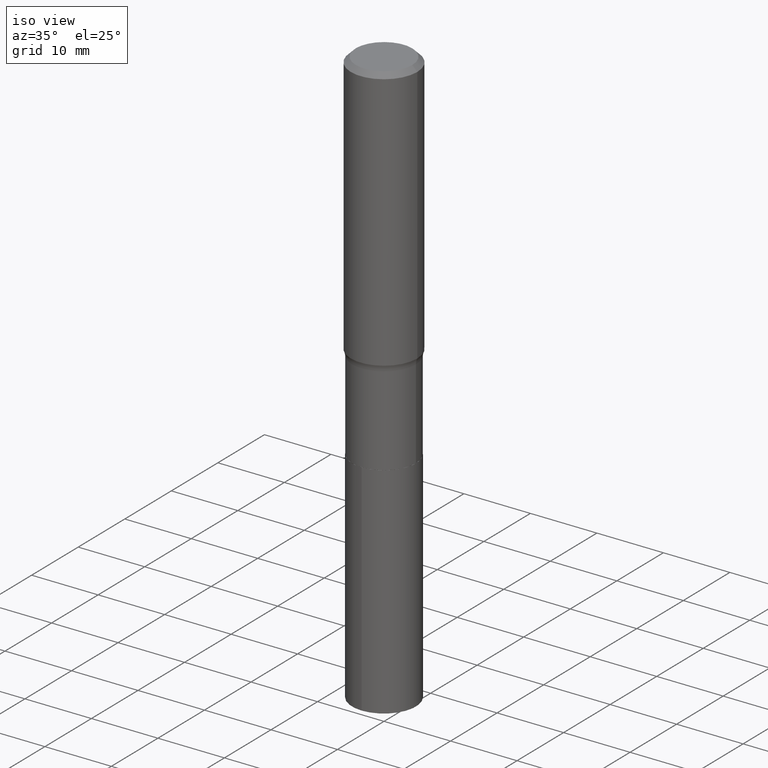
[diagram: clean part render]
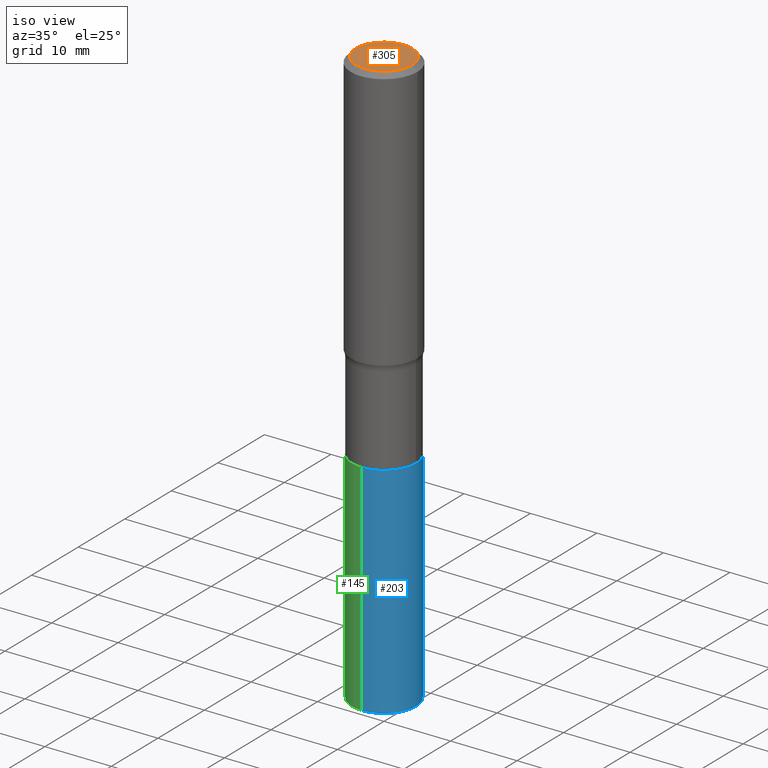
[diagram: same view with three faces highlighted in distinct colors, each labeled with its STEP entity id]
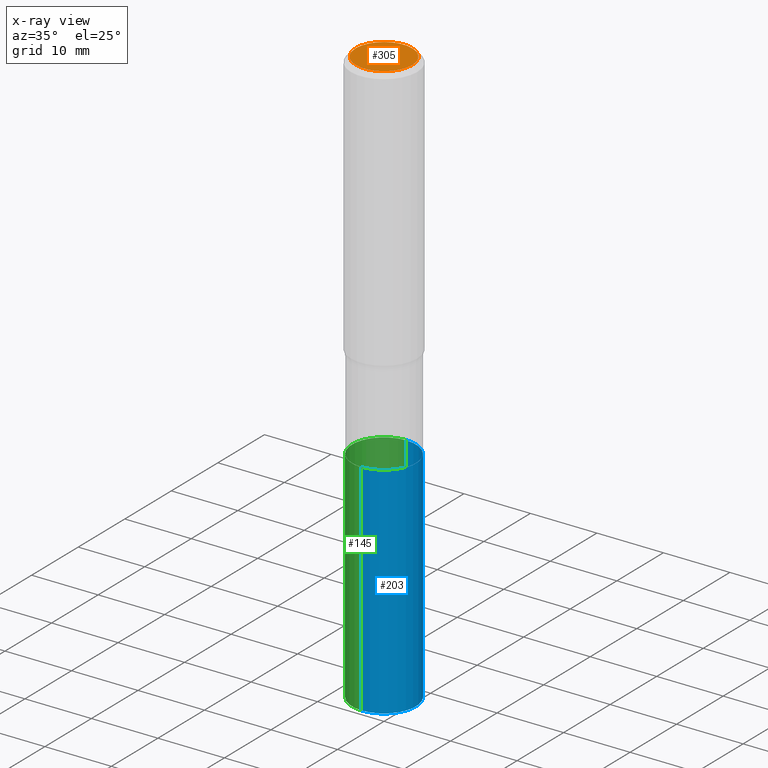
[diagram: x-ray of the same camera — body ghosted, the three highlighted faces saturated]
A machine part, iso view with three faces highlighted in distinct colors.
The next image is the same camera in x-ray (body ghosted, the three faces saturated) — at least one of them is partly hidden behind the body in this view.
Their STEP definitions:

[orange] entity #305 — the highlighted planar face has unit normal (0, -0, -1).
#49 = AXIS2_PLACEMENT_3D ( 'NONE', #140, #64, #479 ) ;
#59 = EDGE_LOOP ( 'NONE', ( #326, #61 ) ) ;
#61 = ORIENTED_EDGE ( 'NONE', *, *, #177, .T. ) ;
#64 = DIRECTION ( 'NONE',  ( -2.445468806185136597E-29, 3.491481338843145583E-15, 1.000000000000000000 ) ) ;
#75 = CARTESIAN_POINT ( 'NONE',  ( -5.008488096090108951E-47, 7.150793614331948590E-33, 2.048068690724054183E-18 ) ) ;
#118 = FACE_OUTER_BOUND ( 'NONE', #59, .T. ) ;
#133 = AXIS2_PLACEMENT_3D ( 'NONE', #75, #454, #381 ) ;
#138 = CIRCLE ( 'NONE', #49, 0.1673224999999999851 ) ;
#140 = CARTESIAN_POINT ( 'NONE',  ( -1.001697619218021790E-46, 1.430158722866389718E-32, 4.096137381448108366E-18 ) ) ;
#141 = CARTESIAN_POINT ( 'NONE',  ( -0.1673224999999999851, 1.219954130253505460E-15, 4.096137381439757534E-18 ) ) ;
#177 = EDGE_CURVE ( 'NONE', #317, #259, #138, .T. ) ;
#193 = DIRECTION ( 'NONE',  ( -2.445468806185136597E-29, 3.491481338843145583E-15, 1.000000000000000000 ) ) ;
#195 = CARTESIAN_POINT ( 'NONE',  ( -1.001697619218021790E-46, 1.430158722866389718E-32, 4.096137381448108366E-18 ) ) ;
#205 = CIRCLE ( 'NONE', #318, 0.1673224999999999851 ) ;
#234 = CARTESIAN_POINT ( 'NONE',  ( 0.1673224999999999851, -1.300749711163072594E-15, 4.096137381456741925E-18 ) ) ;
#259 = VERTEX_POINT ( 'NONE', #141 ) ;
#305 = ADVANCED_FACE ( 'NONE', ( #118 ), #416, .F. ) ;
#317 = VERTEX_POINT ( 'NONE', #234 ) ;
#318 = AXIS2_PLACEMENT_3D ( 'NONE', #195, #193, #341 ) ;
#326 = ORIENTED_EDGE ( 'NONE', *, *, #362, .T. ) ;
#341 = DIRECTION ( 'NONE',  ( 1.000000000000000000, -6.982962677686267499E-15, 4.876294436782262290E-29 ) ) ;
#362 = EDGE_CURVE ( 'NONE', #259, #317, #205, .T. ) ;
#381 = DIRECTION ( 'NONE',  ( -1.000000000000000000, 6.982962677686265922E-15, -4.876176775795935793E-29 ) ) ;
#416 = PLANE ( 'NONE',  #133 ) ;
#454 = DIRECTION ( 'NONE',  ( 2.438088387897960049E-29, -3.491481338843145188E-15, -1.000000000000000000 ) ) ;
#479 = DIRECTION ( 'NONE',  ( 1.000000000000000000, -6.982962677686267499E-15, 4.876294436782262290E-29 ) ) ;

[blue] entity #203 — the highlighted cylindrical surface (partial cylindrical patch) has radius 4.8006 mm, axis along (-0, 0, 1).
#9 = CARTESIAN_POINT ( 'NONE',  ( -1.319779946082652162E-15, -0.1890000000000073843, -2.125899999999999235 ) ) ;
#14 = CARTESIAN_POINT ( 'NONE',  ( -1.319779946082652162E-15, -0.1890000000000073843, -2.125899999999999235 ) ) ;
#22 = LINE ( 'NONE', #223, #58 ) ;
#24 = AXIS2_PLACEMENT_3D ( 'NONE', #25, #370, #334 ) ;
#25 = CARTESIAN_POINT ( 'NONE',  ( 5.198822135068982087E-29, -7.422540178246643119E-15, -2.125899999999999679 ) ) ;
#58 = VECTOR ( 'NONE', #67, 39.37007874015748143 ) ;
#67 = DIRECTION ( 'NONE',  ( -2.445359563184350382E-29, 3.491637781037997457E-15, 1.000000000000000000 ) ) ;
#69 = VECTOR ( 'NONE', #89, 39.37007874015748143 ) ;
#83 = ORIENTED_EDGE ( 'NONE', *, *, #105, .F. ) ;
#89 = DIRECTION ( 'NONE',  ( -2.445359563184350382E-29, 3.491637781037997457E-15, 1.000000000000000000 ) ) ;
#105 = EDGE_CURVE ( 'NONE', #222, #123, #470, .T. ) ;
#121 = CARTESIAN_POINT ( 'NONE',  ( 8.381797617458719247E-29, -1.196739223916697963E-14, -3.427539043317155976 ) ) ;
#123 = VERTEX_POINT ( 'NONE', #14 ) ;
#124 = DIRECTION ( 'NONE',  ( -2.445359563184350382E-29, 3.491637781037997062E-15, 1.000000000000000000 ) ) ;
#203 = ADVANCED_FACE ( 'NONE', ( #226 ), #445, .T. ) ;
#209 = ORIENTED_EDGE ( 'NONE', *, *, #238, .T. ) ;
#217 = VERTEX_POINT ( 'NONE', #485 ) ;
#222 = VERTEX_POINT ( 'NONE', #262 ) ;
#223 = CARTESIAN_POINT ( 'NONE',  ( 1.342925770586640834E-15, 0.1889999999999925628, -2.125900000000000567 ) ) ;
#226 = FACE_OUTER_BOUND ( 'NONE', #402, .T. ) ;
#238 = EDGE_CURVE ( 'NONE', #217, #426, #22, .T. ) ;
#245 = ORIENTED_EDGE ( 'NONE', *, *, #439, .F. ) ;
#262 = CARTESIAN_POINT ( 'NONE',  ( -1.319779946082620410E-15, -0.1890000000000119362, -3.427539043317155532 ) ) ;
#267 = CARTESIAN_POINT ( 'NONE',  ( 1.342925770586672980E-15, 0.1889999999999925628, -2.125900000000000567 ) ) ;
#277 = DIRECTION ( 'NONE',  ( -2.445359563184350382E-29, 3.491637781037997062E-15, 1.000000000000000000 ) ) ;
#294 = CIRCLE ( 'NONE', #368, 0.1889999999999999736 ) ;
#303 = CARTESIAN_POINT ( 'NONE',  ( 5.198822135068982087E-29, -7.422540178246643119E-15, -2.125899999999999679 ) ) ;
#310 = DIRECTION ( 'NONE',  ( -6.982962677686265922E-15, -1.000000000000000000, 2.890844437739961472E-15 ) ) ;
#328 = ORIENTED_EDGE ( 'NONE', *, *, #441, .T. ) ;
#334 = DIRECTION ( 'NONE',  ( -6.982962677686265922E-15, -1.000000000000000000, 2.890844437739961472E-15 ) ) ;
#368 = AXIS2_PLACEMENT_3D ( 'NONE', #303, #124, #385 ) ;
#370 = DIRECTION ( 'NONE',  ( -2.445359563184350382E-29, 3.491637781037997062E-15, 1.000000000000000000 ) ) ;
#385 = DIRECTION ( 'NONE',  ( -6.982962677686265922E-15, -1.000000000000000000, 2.890844437739961472E-15 ) ) ;
#389 = AXIS2_PLACEMENT_3D ( 'NONE', #121, #277, #310 ) ;
#402 = EDGE_LOOP ( 'NONE', ( #328, #209, #245, #83 ) ) ;
#426 = VERTEX_POINT ( 'NONE', #267 ) ;
#439 = EDGE_CURVE ( 'NONE', #123, #426, #294, .T. ) ;
#441 = EDGE_CURVE ( 'NONE', #222, #217, #464, .T. ) ;
#445 = CYLINDRICAL_SURFACE ( 'NONE', #24, 0.1889999999999999736 ) ;
#464 = CIRCLE ( 'NONE', #389, 0.1889999999999999736 ) ;
#470 = LINE ( 'NONE', #9, #69 ) ;
#485 = CARTESIAN_POINT ( 'NONE',  ( 1.342925770586672980E-15, 0.1889999999999880387, -3.427539043317156420 ) ) ;

[green] entity #145 — the highlighted cylindrical surface (partial cylindrical patch) has radius 4.8006 mm, axis along (-0, 0, 1).
#9 = CARTESIAN_POINT ( 'NONE',  ( -1.319779946082652162E-15, -0.1890000000000073843, -2.125899999999999235 ) ) ;
#14 = CARTESIAN_POINT ( 'NONE',  ( -1.319779946082652162E-15, -0.1890000000000073843, -2.125899999999999235 ) ) ;
#22 = LINE ( 'NONE', #223, #58 ) ;
#26 = ORIENTED_EDGE ( 'NONE', *, *, #105, .T. ) ;
#40 = AXIS2_PLACEMENT_3D ( 'NONE', #435, #179, #335 ) ;
#58 = VECTOR ( 'NONE', #67, 39.37007874015748143 ) ;
#67 = DIRECTION ( 'NONE',  ( -2.445359563184350382E-29, 3.491637781037997457E-15, 1.000000000000000000 ) ) ;
#69 = VECTOR ( 'NONE', #89, 39.37007874015748143 ) ;
#86 = CARTESIAN_POINT ( 'NONE',  ( 5.198822135068982087E-29, -7.422540178246643119E-15, -2.125899999999999679 ) ) ;
#89 = DIRECTION ( 'NONE',  ( -2.445359563184350382E-29, 3.491637781037997457E-15, 1.000000000000000000 ) ) ;
#105 = EDGE_CURVE ( 'NONE', #222, #123, #470, .T. ) ;
#112 = ORIENTED_EDGE ( 'NONE', *, *, #238, .F. ) ;
#123 = VERTEX_POINT ( 'NONE', #14 ) ;
#128 = FACE_OUTER_BOUND ( 'NONE', #364, .T. ) ;
#145 = ADVANCED_FACE ( 'NONE', ( #128 ), #427, .T. ) ;
#154 = CARTESIAN_POINT ( 'NONE',  ( 5.198822135068982087E-29, -7.422540178246643119E-15, -2.125899999999999679 ) ) ;
#160 = DIRECTION ( 'NONE',  ( -6.982962677686265922E-15, -1.000000000000000000, 2.890844437739961472E-15 ) ) ;
#174 = CIRCLE ( 'NONE', #239, 0.1889999999999999736 ) ;
#179 = DIRECTION ( 'NONE',  ( -2.445359563184350382E-29, 3.491637781037997062E-15, 1.000000000000000000 ) ) ;
#206 = EDGE_CURVE ( 'NONE', #217, #222, #301, .T. ) ;
#217 = VERTEX_POINT ( 'NONE', #485 ) ;
#222 = VERTEX_POINT ( 'NONE', #262 ) ;
#223 = CARTESIAN_POINT ( 'NONE',  ( 1.342925770586640834E-15, 0.1889999999999925628, -2.125900000000000567 ) ) ;
#238 = EDGE_CURVE ( 'NONE', #217, #426, #22, .T. ) ;
#239 = AXIS2_PLACEMENT_3D ( 'NONE', #154, #379, #160 ) ;
#243 = DIRECTION ( 'NONE',  ( -2.445359563184350382E-29, 3.491637781037997062E-15, 1.000000000000000000 ) ) ;
#262 = CARTESIAN_POINT ( 'NONE',  ( -1.319779946082620410E-15, -0.1890000000000119362, -3.427539043317155532 ) ) ;
#267 = CARTESIAN_POINT ( 'NONE',  ( 1.342925770586672980E-15, 0.1889999999999925628, -2.125900000000000567 ) ) ;
#301 = CIRCLE ( 'NONE', #40, 0.1889999999999999736 ) ;
#335 = DIRECTION ( 'NONE',  ( -6.982962677686265922E-15, -1.000000000000000000, 2.890844437739961472E-15 ) ) ;
#364 = EDGE_LOOP ( 'NONE', ( #112, #459, #26, #434 ) ) ;
#379 = DIRECTION ( 'NONE',  ( -2.445359563184350382E-29, 3.491637781037997062E-15, 1.000000000000000000 ) ) ;
#400 = AXIS2_PLACEMENT_3D ( 'NONE', #86, #243, #433 ) ;
#426 = VERTEX_POINT ( 'NONE', #267 ) ;
#427 = CYLINDRICAL_SURFACE ( 'NONE', #400, 0.1889999999999999736 ) ;
#428 = EDGE_CURVE ( 'NONE', #426, #123, #174, .T. ) ;
#433 = DIRECTION ( 'NONE',  ( -6.982962677686265922E-15, -1.000000000000000000, 2.890844437739961472E-15 ) ) ;
#434 = ORIENTED_EDGE ( 'NONE', *, *, #428, .F. ) ;
#435 = CARTESIAN_POINT ( 'NONE',  ( 8.381797617458719247E-29, -1.196739223916697963E-14, -3.427539043317155976 ) ) ;
#459 = ORIENTED_EDGE ( 'NONE', *, *, #206, .T. ) ;
#470 = LINE ( 'NONE', #9, #69 ) ;
#485 = CARTESIAN_POINT ( 'NONE',  ( 1.342925770586672980E-15, 0.1889999999999880387, -3.427539043317156420 ) ) ;